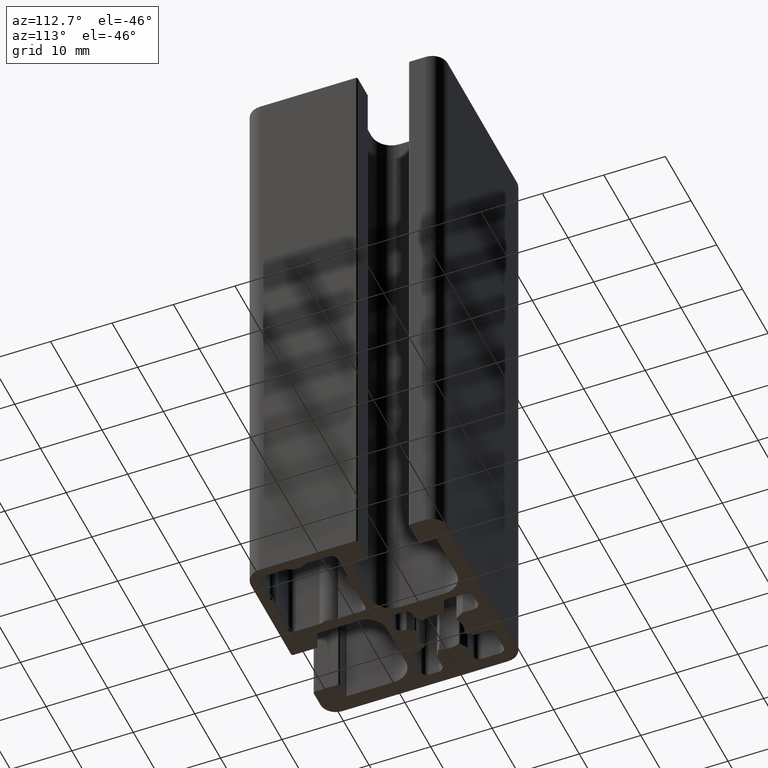
[diagram: clean part render]
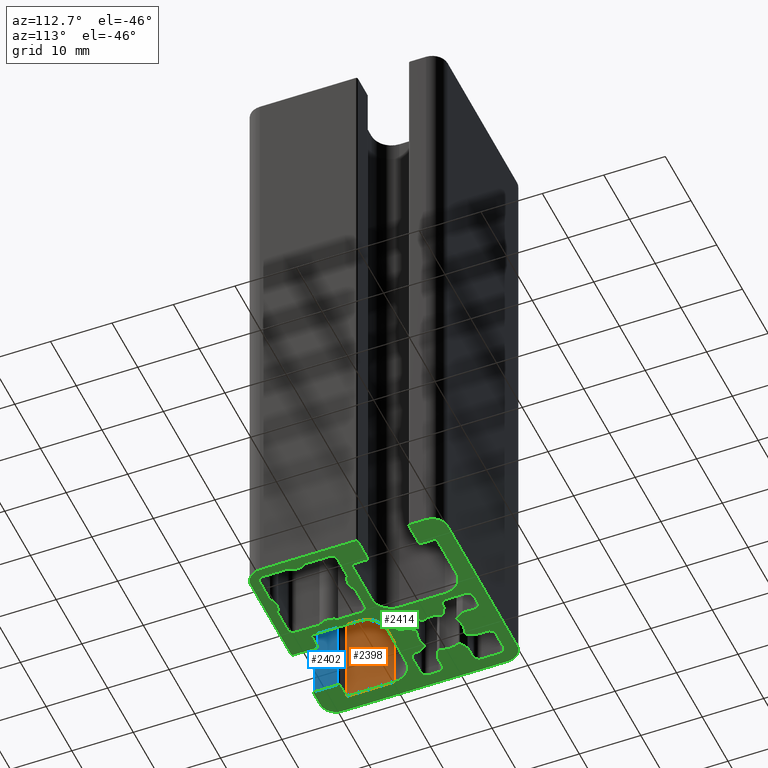
[diagram: same view with three faces highlighted in distinct colors, each labeled with its STEP entity id]
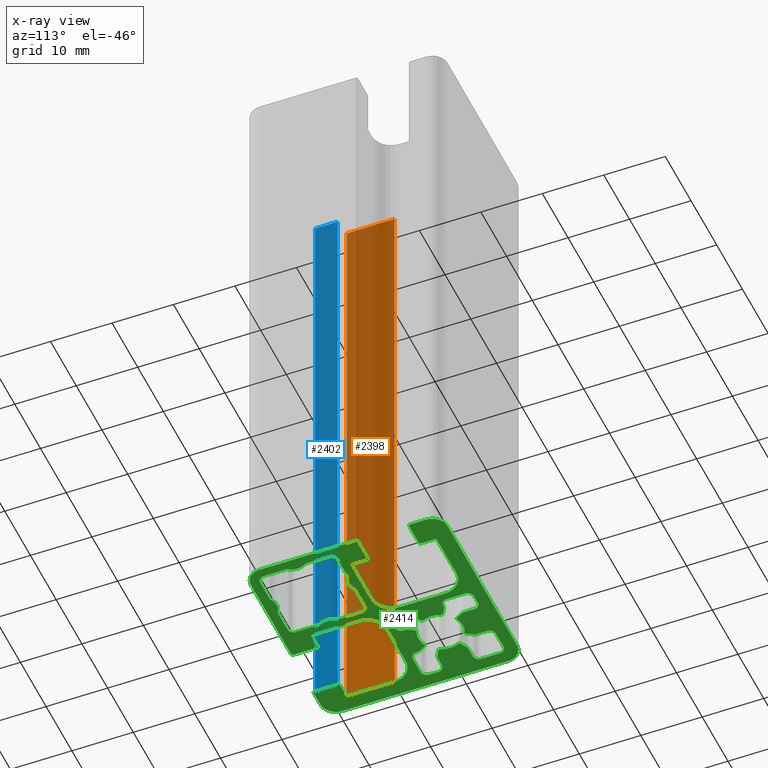
[diagram: x-ray of the same camera — body ghosted, the three highlighted faces saturated]
A machine part, auxiliary view with three faces highlighted in distinct colors.
The next image is the same camera in x-ray (body ghosted, the three faces saturated) — at least one of them is partly hidden behind the body in this view.
Their STEP definitions:

[orange] entity #2398 — the highlighted planar face has unit normal (-1, 0, 0).
#328=FACE_OUTER_BOUND('',#450,.T.);
#450=EDGE_LOOP('',(#1939,#1940,#1941,#1942));
#664=LINE('',#4055,#888);
#665=LINE('',#4059,#889);
#666=LINE('',#4061,#890);
#667=LINE('',#4062,#891);
#888=VECTOR('',#3326,100.);
#889=VECTOR('',#3331,7.79000007260086);
#890=VECTOR('',#3332,100.);
#891=VECTOR('',#3333,7.79000007260086);
#1133=VERTEX_POINT('',#4052);
#1134=VERTEX_POINT('',#4054);
#1135=VERTEX_POINT('',#4058);
#1136=VERTEX_POINT('',#4060);
#1475=EDGE_CURVE('',#1134,#1133,#664,.T.);
#1477=EDGE_CURVE('',#1135,#1133,#665,.T.);
#1478=EDGE_CURVE('',#1136,#1135,#666,.T.);
#1479=EDGE_CURVE('',#1134,#1136,#667,.T.);
#1939=ORIENTED_EDGE('',*,*,#1477,.F.);
#1940=ORIENTED_EDGE('',*,*,#1478,.F.);
#1941=ORIENTED_EDGE('',*,*,#1479,.F.);
#1942=ORIENTED_EDGE('',*,*,#1475,.T.);
#2282=PLANE('',#2646);
#2398=ADVANCED_FACE('',(#328),#2282,.F.);
#2646=AXIS2_PLACEMENT_3D('',#4057,#3329,#3330);
#3326=DIRECTION('',(0.,0.,1.));
#3329=DIRECTION('center_axis',(-1.,0.,0.));
#3330=DIRECTION('ref_axis',(0.,-1.,0.));
#3331=DIRECTION('',(0.,1.,0.));
#3332=DIRECTION('',(0.,0.,1.));
#3333=DIRECTION('',(0.,-1.,0.));
#4052=CARTESIAN_POINT('',(-6.89999393041583,-10.3999917350365,100.));
#4054=CARTESIAN_POINT('',(-6.89999393041583,-10.3999917350365,0.));
#4055=CARTESIAN_POINT('',(-6.89999393041583,-10.3999917350365,0.));
#4057=CARTESIAN_POINT('Origin',(-6.89999393041583,-10.3999917350365,0.));
#4058=CARTESIAN_POINT('',(-6.89999393041583,-18.1899918076374,100.));
#4059=CARTESIAN_POINT('',(-6.89999393041584,-8.44999586751825,100.));
#4060=CARTESIAN_POINT('',(-6.89999393041583,-18.1899918076374,0.));
#4061=CARTESIAN_POINT('',(-6.89999393041583,-18.1899918076374,0.));
#4062=CARTESIAN_POINT('',(-6.89999393041584,-8.44999586751825,0.));

[blue] entity #2402 — the highlighted planar face has unit normal (-1, 0, 0).
#332=FACE_OUTER_BOUND('',#454,.T.);
#454=EDGE_LOOP('',(#1955,#1956,#1957,#1958));
#646=LINE('',#3999,#870);
#672=LINE('',#4079,#896);
#673=LINE('',#4082,#897);
#674=LINE('',#4083,#898);
#870=VECTOR('',#3272,100.);
#896=VECTOR('',#3350,100.);
#897=VECTOR('',#3355,3.70000819236266);
#898=VECTOR('',#3356,3.70000819236266);
#1112=VERTEX_POINT('',#3993);
#1114=VERTEX_POINT('',#3997);
#1141=VERTEX_POINT('',#4076);
#1142=VERTEX_POINT('',#4078);
#1448=EDGE_CURVE('',#1114,#1112,#646,.T.);
#1487=EDGE_CURVE('',#1142,#1141,#672,.T.);
#1489=EDGE_CURVE('',#1112,#1141,#673,.T.);
#1490=EDGE_CURVE('',#1142,#1114,#674,.T.);
#1955=ORIENTED_EDGE('',*,*,#1489,.F.);
#1956=ORIENTED_EDGE('',*,*,#1448,.F.);
#1957=ORIENTED_EDGE('',*,*,#1490,.F.);
#1958=ORIENTED_EDGE('',*,*,#1487,.T.);
#2284=PLANE('',#2654);
#2402=ADVANCED_FACE('',(#332),#2284,.F.);
#2654=AXIS2_PLACEMENT_3D('',#4081,#3353,#3354);
#3272=DIRECTION('',(0.,0.,1.));
#3350=DIRECTION('',(0.,0.,1.));
#3353=DIRECTION('center_axis',(-1.,5.70113263841401E-15,0.));
#3354=DIRECTION('ref_axis',(-5.6843418860808E-15,-1.,0.));
#3355=DIRECTION('',(5.70113263841401E-15,1.,0.));
#3356=DIRECTION('',(-5.70113263841401E-15,-1.,0.));
#3993=CARTESIAN_POINT('',(-4.14999801382816,-22.2,100.));
#3997=CARTESIAN_POINT('',(-4.14999801382816,-22.2,0.));
#3999=CARTESIAN_POINT('',(-4.14999801382816,-22.2,0.));
#4076=CARTESIAN_POINT('',(-4.14999801382814,-18.4999918076374,100.));
#4078=CARTESIAN_POINT('',(-4.14999801382814,-18.4999918076374,0.));
#4079=CARTESIAN_POINT('',(-4.14999801382814,-18.4999918076374,0.));
#4081=CARTESIAN_POINT('Origin',(-4.14999801382814,-18.4999918076374,0.));
#4082=CARTESIAN_POINT('',(-4.14999801382811,-12.4999959038186,100.));
#4083=CARTESIAN_POINT('',(-4.14999801382811,-12.4999959038186,0.));

[green] entity #2414 — the highlighted planar face has unit normal (0, 0, 1).
#17=FACE_BOUND('',#469,.T.);
#18=FACE_BOUND('',#470,.T.);
#20=CIRCLE('',#2420,1.0000000165433);
#22=CIRCLE('',#2424,1.0000000165433);
#24=CIRCLE('',#2428,0.500001676334027);
#26=CIRCLE('',#2432,0.3);
#28=CIRCLE('',#2435,3.59999999999588);
#30=CIRCLE('',#2438,0.3);
#32=CIRCLE('',#2442,0.500001676334034);
#34=CIRCLE('',#2446,1.0000000165433);
#36=CIRCLE('',#2450,1.0000000165433);
#38=CIRCLE('',#2454,1.0000000165433);
#40=CIRCLE('',#2458,0.500001676334034);
#42=CIRCLE('',#2462,0.3);
#44=CIRCLE('',#2465,3.59999999999588);
#46=CIRCLE('',#2468,0.3);
#48=CIRCLE('',#2472,0.500001676334034);
#50=CIRCLE('',#2476,1.0000000165433);
#52=CIRCLE('',#2480,1.0000000165433);
#54=CIRCLE('',#2484,1.0000000165433);
#56=CIRCLE('',#2488,0.500001676334027);
#58=CIRCLE('',#2492,0.3);
#60=CIRCLE('',#2495,3.5999999999959);
#62=CIRCLE('',#2498,0.3);
#64=CIRCLE('',#2502,0.500001676334034);
#66=CIRCLE('',#2506,1.0000000165433);
#68=CIRCLE('',#2510,1.0000000165433);
#70=CIRCLE('',#2514,1.0000000165433);
#72=CIRCLE('',#2518,0.500001676334027);
#74=CIRCLE('',#2522,0.3);
#76=CIRCLE('',#2525,3.59999999999589);
#78=CIRCLE('',#2528,0.3);
#80=CIRCLE('',#2532,0.500001676334027);
#82=CIRCLE('',#2536,1.0000000165433);
#84=CIRCLE('',#2539,1.0000000165433);
#86=CIRCLE('',#2543,0.099999999999999);
#88=CIRCLE('',#2546,2.5);
#90=CIRCLE('',#2549,0.1);
#92=CIRCLE('',#2553,1.0000000165433);
#94=CIRCLE('',#2557,0.099999999999999);
#96=CIRCLE('',#2560,2.5);
#98=CIRCLE('',#2563,0.1);
#100=CIRCLE('',#2567,1.0000000165433);
#102=CIRCLE('',#2571,0.099999999999999);
#104=CIRCLE('',#2574,2.5);
#106=CIRCLE('',#2577,0.1);
#108=CIRCLE('',#2581,1.0000000165433);
#110=CIRCLE('',#2585,0.099999999999999);
#112=CIRCLE('',#2588,2.5);
#114=CIRCLE('',#2591,0.1);
#116=CIRCLE('',#2595,0.3);
#118=CIRCLE('',#2598,0.3);
#120=CIRCLE('',#2602,0.3);
#122=CIRCLE('',#2606,0.01);
#124=CIRCLE('',#2610,3.2);
#126=CIRCLE('',#2614,3.2);
#128=CIRCLE('',#2618,0.01);
#130=CIRCLE('',#2622,0.3);
#132=CIRCLE('',#2626,0.3);
#134=CIRCLE('',#2629,0.3);
#136=CIRCLE('',#2633,0.3);
#138=CIRCLE('',#2637,0.01);
#140=CIRCLE('',#2641,3.2);
#142=CIRCLE('',#2645,3.2);
#144=CIRCLE('',#2649,0.01);
#146=CIRCLE('',#2653,0.3);
#151=CIRCLE('',#2663,2.5);
#152=CIRCLE('',#2666,2.5);
#153=CIRCLE('',#2669,2.5);
#154=CIRCLE('',#2672,2.5);
#344=FACE_OUTER_BOUND('',#468,.T.);
#468=EDGE_LOOP('',(#2119,#2120,#2121,#2122,#2123,#2124,#2125,#2126,#2127,
#2128,#2129,#2130,#2131,#2132,#2133,#2134,#2135,#2136,#2137,#2138,#2139,
#2140,#2141,#2142,#2143,#2144,#2145,#2146,#2147,#2148,#2149,#2150,#2151,
#2152,#2153,#2154,#2155,#2156,#2157,#2158));
#469=EDGE_LOOP('',(#2159,#2160,#2161,#2162,#2163,#2164,#2165,#2166,#2167,
#2168,#2169,#2170,#2171,#2172,#2173,#2174,#2175,#2176,#2177,#2178,#2179,
#2180,#2181,#2182,#2183,#2184,#2185,#2186,#2187,#2188,#2189,#2190,#2191,
#2192,#2193,#2194,#2195,#2196,#2197,#2198,#2199,#2200,#2201,#2202,#2203,
#2204,#2205,#2206,#2207,#2208,#2209,#2210,#2211,#2212,#2213,#2214));
#470=EDGE_LOOP('',(#2215,#2216,#2217,#2218,#2219,#2220,#2221,#2222,#2223,
#2224,#2225,#2226,#2227,#2228,#2229,#2230,#2231,#2232,#2233,#2234,#2235,
#2236,#2237,#2238));
#473=LINE('',#3425,#697);
#477=LINE('',#3437,#701);
#481=LINE('',#3449,#705);
#485=LINE('',#3461,#709);
#491=LINE('',#3485,#715);
#495=LINE('',#3497,#719);
#499=LINE('',#3509,#723);
#503=LINE('',#3521,#727);
#507=LINE('',#3533,#731);
#511=LINE('',#3545,#735);
#517=LINE('',#3569,#741);
#521=LINE('',#3581,#745);
#525=LINE('',#3593,#749);
#529=LINE('',#3605,#753);
#533=LINE('',#3617,#757);
#537=LINE('',#3629,#761);
#543=LINE('',#3653,#767);
#547=LINE('',#3665,#771);
#551=LINE('',#3677,#775);
#555=LINE('',#3689,#779);
#559=LINE('',#3701,#783);
#563=LINE('',#3713,#787);
#569=LINE('',#3737,#793);
#573=LINE('',#3749,#797);
#579=LINE('',#3768,#803);
#585=LINE('',#3792,#809);
#589=LINE('',#3804,#813);
#595=LINE('',#3828,#819);
#599=LINE('',#3840,#823);
#605=LINE('',#3864,#829);
#609=LINE('',#3876,#833);
#614=LINE('',#3897,#838);
#620=LINE('',#3920,#844);
#624=LINE('',#3932,#848);
#628=LINE('',#3944,#852);
#632=LINE('',#3956,#856);
#636=LINE('',#3968,#860);
#640=LINE('',#3980,#864);
#644=LINE('',#3990,#868);
#651=LINE('',#4014,#875);
#655=LINE('',#4026,#879);
#659=LINE('',#4038,#883);
#663=LINE('',#4050,#887);
#667=LINE('',#4062,#891);
#671=LINE('',#4074,#895);
#674=LINE('',#4083,#898);
#675=LINE('',#4086,#899);
#678=LINE('',#4092,#902);
#688=LINE('',#4120,#912);
#691=LINE('',#4128,#915);
#693=LINE('',#4134,#917);
#694=LINE('',#4138,#918);
#697=VECTOR('',#2681,1.49997359290476);
#701=VECTOR('',#2693,3.00001937889475);
#705=VECTOR('',#2705,0.286157400015585);
#709=VECTOR('',#2717,1.20549235501416);
#715=VECTOR('',#2743,1.20550139732267);
#719=VECTOR('',#2755,0.286156572020029);
#723=VECTOR('',#2767,1.49998044408412);
#727=VECTOR('',#2779,1.49997359290475);
#731=VECTOR('',#2791,0.286160286630008);
#735=VECTOR('',#2803,1.20551149207256);
#741=VECTOR('',#2829,1.20551247579095);
#745=VECTOR('',#2841,0.286160123432451);
#749=VECTOR('',#2853,3.00003132768605);
#753=VECTOR('',#2865,1.49998044408412);
#757=VECTOR('',#2877,1.78619361797969);
#761=VECTOR('',#2889,1.20552390549743);
#767=VECTOR('',#2915,1.20550716434565);
#771=VECTOR('',#2927,1.78620176970511);
#775=VECTOR('',#2939,3.00001937889475);
#779=VECTOR('',#2951,3.00003132768605);
#783=VECTOR('',#2963,1.78619197548681);
#787=VECTOR('',#2975,1.20549956865323);
#793=VECTOR('',#3001,1.20550143487319);
#797=VECTOR('',#3013,1.78618800652766);
#803=VECTOR('',#3033,3.76702901177956);
#809=VECTOR('',#3059,3.76702554362364);
#813=VECTOR('',#3071,3.76702901178114);
#819=VECTOR('',#3097,3.76704042189502);
#823=VECTOR('',#3109,3.76703467090212);
#829=VECTOR('',#3135,3.76702335265793);
#833=VECTOR('',#3147,3.76704033931625);
#838=VECTOR('',#3172,3.76702818599233);
#844=VECTOR('',#3192,3.70000432067743);
#848=VECTOR('',#3204,2.43999591658735);
#852=VECTOR('',#3216,7.79000007259997);
#856=VECTOR('',#3228,7.40000028181478);
#860=VECTOR('',#3240,7.79000007259999);
#864=VECTOR('',#3252,2.43999591658744);
#868=VECTOR('',#3264,3.70000432067743);
#875=VECTOR('',#3285,3.70000819236266);
#879=VECTOR('',#3297,2.43999591658729);
#883=VECTOR('',#3309,7.79000007260085);
#887=VECTOR('',#3321,7.39999207868984);
#891=VECTOR('',#3333,7.79000007260086);
#895=VECTOR('',#3345,2.43999591658769);
#898=VECTOR('',#3356,3.70000819236266);
#899=VECTOR('',#3359,2.54999583839044);
#902=VECTOR('',#3364,15.5499977683133);
#912=VECTOR('',#3390,27.);
#915=VECTOR('',#3399,27.);
#917=VECTOR('',#3407,15.5499957129696);
#918=VECTOR('',#3414,2.55000198617185);
#921=VERTEX_POINT('',#3422);
#922=VERTEX_POINT('',#3424);
#924=VERTEX_POINT('',#3430);
#926=VERTEX_POINT('',#3436);
#928=VERTEX_POINT('',#3442);
#930=VERTEX_POINT('',#3448);
#932=VERTEX_POINT('',#3454);
#934=VERTEX_POINT('',#3460);
#936=VERTEX_POINT('',#3466);
#938=VERTEX_POINT('',#3472);
#940=VERTEX_POINT('',#3478);
#942=VERTEX_POINT('',#3484);
#944=VERTEX_POINT('',#3490);
#946=VERTEX_POINT('',#3496);
#948=VERTEX_POINT('',#3502);
#950=VERTEX_POINT('',#3508);
#952=VERTEX_POINT('',#3514);
#954=VERTEX_POINT('',#3520);
#956=VERTEX_POINT('',#3526);
#958=VERTEX_POINT('',#3532);
#960=VERTEX_POINT('',#3538);
#962=VERTEX_POINT('',#3544);
#964=VERTEX_POINT('',#3550);
#966=VERTEX_POINT('',#3556);
#968=VERTEX_POINT('',#3562);
#970=VERTEX_POINT('',#3568);
#972=VERTEX_POINT('',#3574);
#974=VERTEX_POINT('',#3580);
#976=VERTEX_POINT('',#3586);
#978=VERTEX_POINT('',#3592);
#980=VERTEX_POINT('',#3598);
#982=VERTEX_POINT('',#3604);
#984=VERTEX_POINT('',#3610);
#986=VERTEX_POINT('',#3616);
#988=VERTEX_POINT('',#3622);
#990=VERTEX_POINT('',#3628);
#992=VERTEX_POINT('',#3634);
#994=VERTEX_POINT('',#3640);
#996=VERTEX_POINT('',#3646);
#998=VERTEX_POINT('',#3652);
#1000=VERTEX_POINT('',#3658);
#1002=VERTEX_POINT('',#3664);
#1004=VERTEX_POINT('',#3670);
#1006=VERTEX_POINT('',#3676);
#1008=VERTEX_POINT('',#3682);
#1010=VERTEX_POINT('',#3688);
#1012=VERTEX_POINT('',#3694);
#1014=VERTEX_POINT('',#3700);
#1016=VERTEX_POINT('',#3706);
#1018=VERTEX_POINT('',#3712);
#1020=VERTEX_POINT('',#3718);
#1022=VERTEX_POINT('',#3724);
#1024=VERTEX_POINT('',#3730);
#1026=VERTEX_POINT('',#3736);
#1028=VERTEX_POINT('',#3742);
#1030=VERTEX_POINT('',#3748);
#1033=VERTEX_POINT('',#3758);
#1034=VERTEX_POINT('',#3760);
#1036=VERTEX_POINT('',#3766);
#1038=VERTEX_POINT('',#3772);
#1040=VERTEX_POINT('',#3778);
#1042=VERTEX_POINT('',#3784);
#1044=VERTEX_POINT('',#3790);
#1046=VERTEX_POINT('',#3796);
#1048=VERTEX_POINT('',#3802);
#1050=VERTEX_POINT('',#3808);
#1052=VERTEX_POINT('',#3814);
#1054=VERTEX_POINT('',#3820);
#1056=VERTEX_POINT('',#3826);
#1058=VERTEX_POINT('',#3832);
#1060=VERTEX_POINT('',#3838);
#1062=VERTEX_POINT('',#3844);
#1064=VERTEX_POINT('',#3850);
#1066=VERTEX_POINT('',#3856);
#1068=VERTEX_POINT('',#3862);
#1070=VERTEX_POINT('',#3868);
#1072=VERTEX_POINT('',#3874);
#1074=VERTEX_POINT('',#3880);
#1076=VERTEX_POINT('',#3886);
#1078=VERTEX_POINT('',#3892);
#1081=VERTEX_POINT('',#3902);
#1082=VERTEX_POINT('',#3904);
#1085=VERTEX_POINT('',#3911);
#1086=VERTEX_POINT('',#3913);
#1088=VERTEX_POINT('',#3919);
#1090=VERTEX_POINT('',#3925);
#1092=VERTEX_POINT('',#3931);
#1094=VERTEX_POINT('',#3937);
#1096=VERTEX_POINT('',#3943);
#1098=VERTEX_POINT('',#3949);
#1100=VERTEX_POINT('',#3955);
#1102=VERTEX_POINT('',#3961);
#1104=VERTEX_POINT('',#3967);
#1106=VERTEX_POINT('',#3973);
#1108=VERTEX_POINT('',#3979);
#1110=VERTEX_POINT('',#3985);
#1113=VERTEX_POINT('',#3995);
#1114=VERTEX_POINT('',#3997);
#1117=VERTEX_POINT('',#4004);
#1118=VERTEX_POINT('',#4006);
#1120=VERTEX_POINT('',#4012);
#1122=VERTEX_POINT('',#4018);
#1124=VERTEX_POINT('',#4024);
#1126=VERTEX_POINT('',#4030);
#1128=VERTEX_POINT('',#4036);
#1130=VERTEX_POINT('',#4042);
#1132=VERTEX_POINT('',#4048);
#1134=VERTEX_POINT('',#4054);
#1136=VERTEX_POINT('',#4060);
#1138=VERTEX_POINT('',#4066);
#1140=VERTEX_POINT('',#4072);
#1142=VERTEX_POINT('',#4078);
#1143=VERTEX_POINT('',#4085);
#1145=VERTEX_POINT('',#4091);
#1153=VERTEX_POINT('',#4112);
#1154=VERTEX_POINT('',#4114);
#1155=VERTEX_POINT('',#4118);
#1156=VERTEX_POINT('',#4122);
#1157=VERTEX_POINT('',#4126);
#1158=VERTEX_POINT('',#4132);
#1161=EDGE_CURVE('',#922,#921,#473,.T.);
#1164=EDGE_CURVE('',#924,#922,#20,.T.);
#1167=EDGE_CURVE('',#926,#924,#477,.T.);
#1170=EDGE_CURVE('',#928,#926,#22,.T.);
#1173=EDGE_CURVE('',#930,#928,#481,.T.);
#1176=EDGE_CURVE('',#932,#930,#24,.T.);
#1179=EDGE_CURVE('',#934,#932,#485,.T.);
#1182=EDGE_CURVE('',#936,#934,#26,.T.);
#1185=EDGE_CURVE('',#938,#936,#28,.T.);
#1188=EDGE_CURVE('',#940,#938,#30,.T.);
#1191=EDGE_CURVE('',#942,#940,#491,.T.);
#1194=EDGE_CURVE('',#944,#942,#32,.T.);
#1197=EDGE_CURVE('',#946,#944,#495,.T.);
#1200=EDGE_CURVE('',#948,#946,#34,.T.);
#1203=EDGE_CURVE('',#950,#948,#499,.T.);
#1206=EDGE_CURVE('',#952,#950,#36,.T.);
#1209=EDGE_CURVE('',#954,#952,#503,.T.);
#1212=EDGE_CURVE('',#956,#954,#38,.T.);
#1215=EDGE_CURVE('',#958,#956,#507,.T.);
#1218=EDGE_CURVE('',#960,#958,#40,.T.);
#1221=EDGE_CURVE('',#962,#960,#511,.T.);
#1224=EDGE_CURVE('',#964,#962,#42,.T.);
#1227=EDGE_CURVE('',#966,#964,#44,.T.);
#1230=EDGE_CURVE('',#968,#966,#46,.T.);
#1233=EDGE_CURVE('',#970,#968,#517,.T.);
#1236=EDGE_CURVE('',#972,#970,#48,.T.);
#1239=EDGE_CURVE('',#974,#972,#521,.T.);
#1242=EDGE_CURVE('',#976,#974,#50,.T.);
#1245=EDGE_CURVE('',#978,#976,#525,.T.);
#1248=EDGE_CURVE('',#980,#978,#52,.T.);
#1251=EDGE_CURVE('',#982,#980,#529,.T.);
#1254=EDGE_CURVE('',#984,#982,#54,.T.);
#1257=EDGE_CURVE('',#986,#984,#533,.T.);
#1260=EDGE_CURVE('',#988,#986,#56,.T.);
#1263=EDGE_CURVE('',#990,#988,#537,.T.);
#1266=EDGE_CURVE('',#992,#990,#58,.T.);
#1269=EDGE_CURVE('',#994,#992,#60,.T.);
#1272=EDGE_CURVE('',#996,#994,#62,.T.);
#1275=EDGE_CURVE('',#998,#996,#543,.T.);
#1278=EDGE_CURVE('',#1000,#998,#64,.T.);
#1281=EDGE_CURVE('',#1002,#1000,#547,.T.);
#1284=EDGE_CURVE('',#1004,#1002,#66,.T.);
#1287=EDGE_CURVE('',#1006,#1004,#551,.T.);
#1290=EDGE_CURVE('',#1008,#1006,#68,.T.);
#1293=EDGE_CURVE('',#1010,#1008,#555,.T.);
#1296=EDGE_CURVE('',#1012,#1010,#70,.T.);
#1299=EDGE_CURVE('',#1014,#1012,#559,.T.);
#1302=EDGE_CURVE('',#1016,#1014,#72,.T.);
#1305=EDGE_CURVE('',#1018,#1016,#563,.T.);
#1308=EDGE_CURVE('',#1020,#1018,#74,.T.);
#1311=EDGE_CURVE('',#1022,#1020,#76,.T.);
#1314=EDGE_CURVE('',#1024,#1022,#78,.T.);
#1317=EDGE_CURVE('',#1026,#1024,#569,.T.);
#1320=EDGE_CURVE('',#1028,#1026,#80,.T.);
#1323=EDGE_CURVE('',#1030,#1028,#573,.T.);
#1326=EDGE_CURVE('',#921,#1030,#82,.T.);
#1329=EDGE_CURVE('',#1034,#1033,#84,.T.);
#1333=EDGE_CURVE('',#1033,#1036,#579,.T.);
#1336=EDGE_CURVE('',#1036,#1038,#86,.T.);
#1339=EDGE_CURVE('',#1038,#1040,#88,.T.);
#1342=EDGE_CURVE('',#1040,#1042,#90,.T.);
#1345=EDGE_CURVE('',#1042,#1044,#585,.T.);
#1348=EDGE_CURVE('',#1044,#1046,#92,.T.);
#1351=EDGE_CURVE('',#1046,#1048,#589,.T.);
#1354=EDGE_CURVE('',#1048,#1050,#94,.T.);
#1357=EDGE_CURVE('',#1050,#1052,#96,.T.);
#1360=EDGE_CURVE('',#1052,#1054,#98,.T.);
#1363=EDGE_CURVE('',#1054,#1056,#595,.T.);
#1366=EDGE_CURVE('',#1056,#1058,#100,.T.);
#1369=EDGE_CURVE('',#1058,#1060,#599,.T.);
#1372=EDGE_CURVE('',#1060,#1062,#102,.T.);
#1375=EDGE_CURVE('',#1062,#1064,#104,.T.);
#1378=EDGE_CURVE('',#1064,#1066,#106,.T.);
#1381=EDGE_CURVE('',#1066,#1068,#605,.T.);
#1384=EDGE_CURVE('',#1068,#1070,#108,.T.);
#1387=EDGE_CURVE('',#1070,#1072,#609,.T.);
#1390=EDGE_CURVE('',#1072,#1074,#110,.T.);
#1393=EDGE_CURVE('',#1074,#1076,#112,.T.);
#1396=EDGE_CURVE('',#1076,#1078,#114,.T.);
#1398=EDGE_CURVE('',#1078,#1034,#614,.T.);
#1401=EDGE_CURVE('',#1082,#1081,#116,.T.);
#1405=EDGE_CURVE('',#1086,#1085,#118,.T.);
#1408=EDGE_CURVE('',#1088,#1086,#620,.T.);
#1411=EDGE_CURVE('',#1090,#1088,#120,.T.);
#1414=EDGE_CURVE('',#1092,#1090,#624,.T.);
#1417=EDGE_CURVE('',#1094,#1092,#122,.T.);
#1420=EDGE_CURVE('',#1096,#1094,#628,.T.);
#1423=EDGE_CURVE('',#1098,#1096,#124,.T.);
#1426=EDGE_CURVE('',#1100,#1098,#632,.T.);
#1429=EDGE_CURVE('',#1102,#1100,#126,.T.);
#1432=EDGE_CURVE('',#1104,#1102,#636,.T.);
#1435=EDGE_CURVE('',#1106,#1104,#128,.T.);
#1438=EDGE_CURVE('',#1108,#1106,#640,.T.);
#1441=EDGE_CURVE('',#1110,#1108,#130,.T.);
#1444=EDGE_CURVE('',#1081,#1110,#644,.T.);
#1447=EDGE_CURVE('',#1114,#1113,#132,.T.);
#1451=EDGE_CURVE('',#1118,#1117,#134,.T.);
#1455=EDGE_CURVE('',#1117,#1120,#651,.T.);
#1458=EDGE_CURVE('',#1120,#1122,#136,.T.);
#1461=EDGE_CURVE('',#1122,#1124,#655,.T.);
#1464=EDGE_CURVE('',#1124,#1126,#138,.T.);
#1467=EDGE_CURVE('',#1126,#1128,#659,.T.);
#1470=EDGE_CURVE('',#1128,#1130,#140,.T.);
#1473=EDGE_CURVE('',#1130,#1132,#663,.T.);
#1476=EDGE_CURVE('',#1132,#1134,#142,.T.);
#1479=EDGE_CURVE('',#1134,#1136,#667,.T.);
#1482=EDGE_CURVE('',#1136,#1138,#144,.T.);
#1485=EDGE_CURVE('',#1138,#1140,#671,.T.);
#1488=EDGE_CURVE('',#1140,#1142,#146,.T.);
#1490=EDGE_CURVE('',#1142,#1114,#674,.T.);
#1491=EDGE_CURVE('',#1143,#1082,#675,.T.);
#1494=EDGE_CURVE('',#1145,#1118,#678,.T.);
#1506=EDGE_CURVE('',#1154,#1153,#151,.T.);
#1509=EDGE_CURVE('',#1153,#1155,#688,.T.);
#1511=EDGE_CURVE('',#1155,#1156,#152,.T.);
#1513=EDGE_CURVE('',#1156,#1157,#691,.T.);
#1514=EDGE_CURVE('',#1157,#1143,#153,.T.);
#1516=EDGE_CURVE('',#1085,#1158,#693,.T.);
#1517=EDGE_CURVE('',#1158,#1145,#154,.T.);
#1518=EDGE_CURVE('',#1113,#1154,#694,.T.);
#2119=ORIENTED_EDGE('',*,*,#1405,.T.);
#2120=ORIENTED_EDGE('',*,*,#1516,.T.);
#2121=ORIENTED_EDGE('',*,*,#1517,.T.);
#2122=ORIENTED_EDGE('',*,*,#1494,.T.);
#2123=ORIENTED_EDGE('',*,*,#1451,.T.);
#2124=ORIENTED_EDGE('',*,*,#1455,.T.);
#2125=ORIENTED_EDGE('',*,*,#1458,.T.);
#2126=ORIENTED_EDGE('',*,*,#1461,.T.);
#2127=ORIENTED_EDGE('',*,*,#1464,.T.);
#2128=ORIENTED_EDGE('',*,*,#1467,.T.);
#2129=ORIENTED_EDGE('',*,*,#1470,.T.);
#2130=ORIENTED_EDGE('',*,*,#1473,.T.);
#2131=ORIENTED_EDGE('',*,*,#1476,.T.);
#2132=ORIENTED_EDGE('',*,*,#1479,.T.);
#2133=ORIENTED_EDGE('',*,*,#1482,.T.);
#2134=ORIENTED_EDGE('',*,*,#1485,.T.);
#2135=ORIENTED_EDGE('',*,*,#1488,.T.);
#2136=ORIENTED_EDGE('',*,*,#1490,.T.);
#2137=ORIENTED_EDGE('',*,*,#1447,.T.);
#2138=ORIENTED_EDGE('',*,*,#1518,.T.);
#2139=ORIENTED_EDGE('',*,*,#1506,.T.);
#2140=ORIENTED_EDGE('',*,*,#1509,.T.);
#2141=ORIENTED_EDGE('',*,*,#1511,.T.);
#2142=ORIENTED_EDGE('',*,*,#1513,.T.);
#2143=ORIENTED_EDGE('',*,*,#1514,.T.);
#2144=ORIENTED_EDGE('',*,*,#1491,.T.);
#2145=ORIENTED_EDGE('',*,*,#1401,.T.);
#2146=ORIENTED_EDGE('',*,*,#1444,.T.);
#2147=ORIENTED_EDGE('',*,*,#1441,.T.);
#2148=ORIENTED_EDGE('',*,*,#1438,.T.);
#2149=ORIENTED_EDGE('',*,*,#1435,.T.);
#2150=ORIENTED_EDGE('',*,*,#1432,.T.);
#2151=ORIENTED_EDGE('',*,*,#1429,.T.);
#2152=ORIENTED_EDGE('',*,*,#1426,.T.);
#2153=ORIENTED_EDGE('',*,*,#1423,.T.);
#2154=ORIENTED_EDGE('',*,*,#1420,.T.);
#2155=ORIENTED_EDGE('',*,*,#1417,.T.);
#2156=ORIENTED_EDGE('',*,*,#1414,.T.);
#2157=ORIENTED_EDGE('',*,*,#1411,.T.);
#2158=ORIENTED_EDGE('',*,*,#1408,.T.);
#2159=ORIENTED_EDGE('',*,*,#1161,.T.);
#2160=ORIENTED_EDGE('',*,*,#1326,.T.);
#2161=ORIENTED_EDGE('',*,*,#1323,.T.);
#2162=ORIENTED_EDGE('',*,*,#1320,.T.);
#2163=ORIENTED_EDGE('',*,*,#1317,.T.);
#2164=ORIENTED_EDGE('',*,*,#1314,.T.);
#2165=ORIENTED_EDGE('',*,*,#1311,.T.);
#2166=ORIENTED_EDGE('',*,*,#1308,.T.);
#2167=ORIENTED_EDGE('',*,*,#1305,.T.);
#2168=ORIENTED_EDGE('',*,*,#1302,.T.);
#2169=ORIENTED_EDGE('',*,*,#1299,.T.);
#2170=ORIENTED_EDGE('',*,*,#1296,.T.);
#2171=ORIENTED_EDGE('',*,*,#1293,.T.);
#2172=ORIENTED_EDGE('',*,*,#1290,.T.);
#2173=ORIENTED_EDGE('',*,*,#1287,.T.);
#2174=ORIENTED_EDGE('',*,*,#1284,.T.);
#2175=ORIENTED_EDGE('',*,*,#1281,.T.);
#2176=ORIENTED_EDGE('',*,*,#1278,.T.);
#2177=ORIENTED_EDGE('',*,*,#1275,.T.);
#2178=ORIENTED_EDGE('',*,*,#1272,.T.);
#2179=ORIENTED_EDGE('',*,*,#1269,.T.);
#2180=ORIENTED_EDGE('',*,*,#1266,.T.);
#2181=ORIENTED_EDGE('',*,*,#1263,.T.);
#2182=ORIENTED_EDGE('',*,*,#1260,.T.);
#2183=ORIENTED_EDGE('',*,*,#1257,.T.);
#2184=ORIENTED_EDGE('',*,*,#1254,.T.);
#2185=ORIENTED_EDGE('',*,*,#1251,.T.);
#2186=ORIENTED_EDGE('',*,*,#1248,.T.);
#2187=ORIENTED_EDGE('',*,*,#1245,.T.);
#2188=ORIENTED_EDGE('',*,*,#1242,.T.);
#2189=ORIENTED_EDGE('',*,*,#1239,.T.);
#2190=ORIENTED_EDGE('',*,*,#1236,.T.);
#2191=ORIENTED_EDGE('',*,*,#1233,.T.);
#2192=ORIENTED_EDGE('',*,*,#1230,.T.);
#2193=ORIENTED_EDGE('',*,*,#1227,.T.);
#2194=ORIENTED_EDGE('',*,*,#1224,.T.);
#2195=ORIENTED_EDGE('',*,*,#1221,.T.);
#2196=ORIENTED_EDGE('',*,*,#1218,.T.);
#2197=ORIENTED_EDGE('',*,*,#1215,.T.);
#2198=ORIENTED_EDGE('',*,*,#1212,.T.);
#2199=ORIENTED_EDGE('',*,*,#1209,.T.);
#2200=ORIENTED_EDGE('',*,*,#1206,.T.);
#2201=ORIENTED_EDGE('',*,*,#1203,.T.);
#2202=ORIENTED_EDGE('',*,*,#1200,.T.);
#2203=ORIENTED_EDGE('',*,*,#1197,.T.);
#2204=ORIENTED_EDGE('',*,*,#1194,.T.);
#2205=ORIENTED_EDGE('',*,*,#1191,.T.);
#2206=ORIENTED_EDGE('',*,*,#1188,.T.);
#2207=ORIENTED_EDGE('',*,*,#1185,.T.);
#2208=ORIENTED_EDGE('',*,*,#1182,.T.);
#2209=ORIENTED_EDGE('',*,*,#1179,.T.);
#2210=ORIENTED_EDGE('',*,*,#1176,.T.);
#2211=ORIENTED_EDGE('',*,*,#1173,.T.);
#2212=ORIENTED_EDGE('',*,*,#1170,.T.);
#2213=ORIENTED_EDGE('',*,*,#1167,.T.);
#2214=ORIENTED_EDGE('',*,*,#1164,.T.);
#2215=ORIENTED_EDGE('',*,*,#1329,.T.);
#2216=ORIENTED_EDGE('',*,*,#1333,.T.);
#2217=ORIENTED_EDGE('',*,*,#1336,.T.);
#2218=ORIENTED_EDGE('',*,*,#1339,.T.);
#2219=ORIENTED_EDGE('',*,*,#1342,.T.);
#2220=ORIENTED_EDGE('',*,*,#1345,.T.);
#2221=ORIENTED_EDGE('',*,*,#1348,.T.);
#2222=ORIENTED_EDGE('',*,*,#1351,.T.);
#2223=ORIENTED_EDGE('',*,*,#1354,.T.);
#2224=ORIENTED_EDGE('',*,*,#1357,.T.);
#2225=ORIENTED_EDGE('',*,*,#1360,.T.);
#2226=ORIENTED_EDGE('',*,*,#1363,.T.);
#2227=ORIENTED_EDGE('',*,*,#1366,.T.);
#2228=ORIENTED_EDGE('',*,*,#1369,.T.);
#2229=ORIENTED_EDGE('',*,*,#1372,.T.);
#2230=ORIENTED_EDGE('',*,*,#1375,.T.);
#2231=ORIENTED_EDGE('',*,*,#1378,.T.);
#2232=ORIENTED_EDGE('',*,*,#1381,.T.);
#2233=ORIENTED_EDGE('',*,*,#1384,.T.);
#2234=ORIENTED_EDGE('',*,*,#1387,.T.);
#2235=ORIENTED_EDGE('',*,*,#1390,.T.);
#2236=ORIENTED_EDGE('',*,*,#1393,.T.);
#2237=ORIENTED_EDGE('',*,*,#1396,.T.);
#2238=ORIENTED_EDGE('',*,*,#1398,.T.);
#2292=PLANE('',#2674);
#2414=ADVANCED_FACE('',(#344,#17,#18),#2292,.F.);
#2420=AXIS2_PLACEMENT_3D('',#3431,#2687,#2688);
#2424=AXIS2_PLACEMENT_3D('',#3443,#2699,#2700);
#2428=AXIS2_PLACEMENT_3D('',#3455,#2711,#2712);
#2432=AXIS2_PLACEMENT_3D('',#3467,#2723,#2724);
#2435=AXIS2_PLACEMENT_3D('',#3473,#2730,#2731);
#2438=AXIS2_PLACEMENT_3D('',#3479,#2737,#2738);
#2442=AXIS2_PLACEMENT_3D('',#3491,#2749,#2750);
#2446=AXIS2_PLACEMENT_3D('',#3503,#2761,#2762);
#2450=AXIS2_PLACEMENT_3D('',#3515,#2773,#2774);
#2454=AXIS2_PLACEMENT_3D('',#3527,#2785,#2786);
#2458=AXIS2_PLACEMENT_3D('',#3539,#2797,#2798);
#2462=AXIS2_PLACEMENT_3D('',#3551,#2809,#2810);
#2465=AXIS2_PLACEMENT_3D('',#3557,#2816,#2817);
#2468=AXIS2_PLACEMENT_3D('',#3563,#2823,#2824);
#2472=AXIS2_PLACEMENT_3D('',#3575,#2835,#2836);
#2476=AXIS2_PLACEMENT_3D('',#3587,#2847,#2848);
#2480=AXIS2_PLACEMENT_3D('',#3599,#2859,#2860);
#2484=AXIS2_PLACEMENT_3D('',#3611,#2871,#2872);
#2488=AXIS2_PLACEMENT_3D('',#3623,#2883,#2884);
#2492=AXIS2_PLACEMENT_3D('',#3635,#2895,#2896);
#2495=AXIS2_PLACEMENT_3D('',#3641,#2902,#2903);
#2498=AXIS2_PLACEMENT_3D('',#3647,#2909,#2910);
#2502=AXIS2_PLACEMENT_3D('',#3659,#2921,#2922);
#2506=AXIS2_PLACEMENT_3D('',#3671,#2933,#2934);
#2510=AXIS2_PLACEMENT_3D('',#3683,#2945,#2946);
#2514=AXIS2_PLACEMENT_3D('',#3695,#2957,#2958);
#2518=AXIS2_PLACEMENT_3D('',#3707,#2969,#2970);
#2522=AXIS2_PLACEMENT_3D('',#3719,#2981,#2982);
#2525=AXIS2_PLACEMENT_3D('',#3725,#2988,#2989);
#2528=AXIS2_PLACEMENT_3D('',#3731,#2995,#2996);
#2532=AXIS2_PLACEMENT_3D('',#3743,#3007,#3008);
#2536=AXIS2_PLACEMENT_3D('',#3753,#3019,#3020);
#2539=AXIS2_PLACEMENT_3D('',#3761,#3026,#3027);
#2543=AXIS2_PLACEMENT_3D('',#3774,#3039,#3040);
#2546=AXIS2_PLACEMENT_3D('',#3780,#3046,#3047);
#2549=AXIS2_PLACEMENT_3D('',#3786,#3053,#3054);
#2553=AXIS2_PLACEMENT_3D('',#3798,#3065,#3066);
#2557=AXIS2_PLACEMENT_3D('',#3810,#3077,#3078);
#2560=AXIS2_PLACEMENT_3D('',#3816,#3084,#3085);
#2563=AXIS2_PLACEMENT_3D('',#3822,#3091,#3092);
#2567=AXIS2_PLACEMENT_3D('',#3834,#3103,#3104);
#2571=AXIS2_PLACEMENT_3D('',#3846,#3115,#3116);
#2574=AXIS2_PLACEMENT_3D('',#3852,#3122,#3123);
#2577=AXIS2_PLACEMENT_3D('',#3858,#3129,#3130);
#2581=AXIS2_PLACEMENT_3D('',#3870,#3141,#3142);
#2585=AXIS2_PLACEMENT_3D('',#3882,#3153,#3154);
#2588=AXIS2_PLACEMENT_3D('',#3888,#3160,#3161);
#2591=AXIS2_PLACEMENT_3D('',#3894,#3167,#3168);
#2595=AXIS2_PLACEMENT_3D('',#3905,#3178,#3179);
#2598=AXIS2_PLACEMENT_3D('',#3914,#3186,#3187);
#2602=AXIS2_PLACEMENT_3D('',#3926,#3198,#3199);
#2606=AXIS2_PLACEMENT_3D('',#3938,#3210,#3211);
#2610=AXIS2_PLACEMENT_3D('',#3950,#3222,#3223);
#2614=AXIS2_PLACEMENT_3D('',#3962,#3234,#3235);
#2618=AXIS2_PLACEMENT_3D('',#3974,#3246,#3247);
#2622=AXIS2_PLACEMENT_3D('',#3986,#3258,#3259);
#2626=AXIS2_PLACEMENT_3D('',#3998,#3270,#3271);
#2629=AXIS2_PLACEMENT_3D('',#4007,#3278,#3279);
#2633=AXIS2_PLACEMENT_3D('',#4020,#3291,#3292);
#2637=AXIS2_PLACEMENT_3D('',#4032,#3303,#3304);
#2641=AXIS2_PLACEMENT_3D('',#4044,#3315,#3316);
#2645=AXIS2_PLACEMENT_3D('',#4056,#3327,#3328);
#2649=AXIS2_PLACEMENT_3D('',#4068,#3339,#3340);
#2653=AXIS2_PLACEMENT_3D('',#4080,#3351,#3352);
#2663=AXIS2_PLACEMENT_3D('',#4115,#3384,#3385);
#2666=AXIS2_PLACEMENT_3D('',#4124,#3394,#3395);
#2669=AXIS2_PLACEMENT_3D('',#4130,#3402,#3403);
#2672=AXIS2_PLACEMENT_3D('',#4136,#3410,#3411);
#2674=AXIS2_PLACEMENT_3D('',#4139,#3415,#3416);
#2681=DIRECTION('',(-1.,5.92129370744543E-15,0.));
#2687=DIRECTION('center_axis',(0.,0.,1.));
#2688=DIRECTION('ref_axis',(1.,4.44089202503363E-15,0.));
#2693=DIRECTION('',(-1.48028780405302E-15,1.,0.));
#2699=DIRECTION('center_axis',(0.,0.,1.));
#2700=DIRECTION('ref_axis',(0.,-1.,0.));
#2705=DIRECTION('',(1.,-1.55190538433001E-14,0.));
#2711=DIRECTION('center_axis',(0.,0.,-1.));
#2712=DIRECTION('ref_axis',(-8.88175441942698E-15,-1.,0.));
#2717=DIRECTION('',(0.866025509586623,0.499999816745197,0.));
#2723=DIRECTION('center_axis',(0.,0.,-1.));
#2724=DIRECTION('ref_axis',(0.499999816745203,-0.866025509586619,0.));
#2730=DIRECTION('center_axis',(0.,0.,1.));
#2731=DIRECTION('ref_axis',(0.915339856575037,-0.40268219102065,0.));
#2737=DIRECTION('center_axis',(0.,0.,-1.));
#2738=DIRECTION('ref_axis',(0.915339856575036,-0.402682191020651,0.));
#2743=DIRECTION('',(-0.866021992403805,0.500005908638032,0.));
#2749=DIRECTION('center_axis',(0.,0.,-1.));
#2750=DIRECTION('ref_axis',(0.500005908638014,0.866021992403815,0.));
#2755=DIRECTION('',(-1.,0.,0.));
#2761=DIRECTION('center_axis',(0.,0.,1.));
#2762=DIRECTION('ref_axis',(1.,-4.44089202503363E-15,0.));
#2767=DIRECTION('',(0.,1.,0.));
#2773=DIRECTION('center_axis',(0.,0.,1.));
#2774=DIRECTION('ref_axis',(0.,-1.,0.));
#2779=DIRECTION('',(1.,-2.96064685372273E-15,0.));
#2785=DIRECTION('center_axis',(0.,0.,1.));
#2786=DIRECTION('ref_axis',(-1.,0.,0.));
#2791=DIRECTION('',(-5.81958648612529E-15,-1.,0.));
#2797=DIRECTION('center_axis',(0.,0.,-1.));
#2798=DIRECTION('ref_axis',(-1.,-8.88175441942683E-15,0.));
#2803=DIRECTION('',(0.49999981674519,-0.866025509586627,0.));
#2809=DIRECTION('center_axis',(0.,0.,-1.));
#2810=DIRECTION('ref_axis',(-0.866025509586622,-0.499999816745199,0.));
#2816=DIRECTION('center_axis',(0.,0.,1.));
#2817=DIRECTION('ref_axis',(-0.40267825495363,-0.91534158814483,0.));
#2823=DIRECTION('center_axis',(0.,0.,-1.));
#2824=DIRECTION('ref_axis',(-0.402678254953657,-0.915341588144818,0.));
#2829=DIRECTION('',(0.500005908638026,0.866021992403808,0.));
#2835=DIRECTION('center_axis',(0.,0.,-1.));
#2836=DIRECTION('ref_axis',(0.866021992403805,-0.500005908638033,0.));
#2841=DIRECTION('',(0.,1.,0.));
#2847=DIRECTION('center_axis',(0.,0.,1.));
#2848=DIRECTION('ref_axis',(1.11022300625841E-15,-1.,0.));
#2853=DIRECTION('',(1.,1.48028190823125E-15,0.));
#2859=DIRECTION('center_axis',(0.,0.,1.));
#2860=DIRECTION('ref_axis',(-1.,4.44089202503363E-15,0.));
#2865=DIRECTION('',(-1.48031666546567E-15,-1.,0.));
#2871=DIRECTION('center_axis',(0.,0.,1.));
#2872=DIRECTION('ref_axis',(1.11022300625841E-15,1.,0.));
#2877=DIRECTION('',(-1.,7.45869661687112E-15,0.));
#2883=DIRECTION('center_axis',(0.,0.,-1.));
#2884=DIRECTION('ref_axis',(-2.22043860485672E-15,1.,0.));
#2889=DIRECTION('',(-0.866025509586624,-0.499999816745194,0.));
#2895=DIRECTION('center_axis',(0.,0.,-1.));
#2896=DIRECTION('ref_axis',(-0.4999998167452,0.866025509586621,0.));
#2902=DIRECTION('center_axis',(0.,0.,1.));
#2903=DIRECTION('ref_axis',(-0.9153426204002,0.402675908490805,0.));
#2909=DIRECTION('center_axis',(0.,0.,-1.));
#2910=DIRECTION('ref_axis',(-0.915342620400191,0.402675908490826,0.));
#2915=DIRECTION('',(0.866021992403808,-0.500005908638027,0.));
#2921=DIRECTION('center_axis',(0.,0.,-1.));
#2922=DIRECTION('ref_axis',(-0.500005908638032,-0.866021992403805,0.));
#2927=DIRECTION('',(1.,2.48622085915512E-15,0.));
#2933=DIRECTION('center_axis',(0.,0.,1.));
#2934=DIRECTION('ref_axis',(-1.,4.44089202503363E-15,0.));
#2939=DIRECTION('',(-7.40143902026511E-16,-1.,0.));
#2945=DIRECTION('center_axis',(0.,0.,1.));
#2946=DIRECTION('ref_axis',(1.1102230062584E-15,1.,0.));
#2951=DIRECTION('',(-1.,0.,0.));
#2957=DIRECTION('center_axis',(0.,0.,1.));
#2958=DIRECTION('ref_axis',(1.,0.,0.));
#2963=DIRECTION('',(2.79701380331842E-15,1.,0.));
#2969=DIRECTION('center_axis',(0.,0.,-1.));
#2970=DIRECTION('ref_axis',(1.,0.,0.));
#2975=DIRECTION('',(-0.499999816745193,0.866025509586625,0.));
#2981=DIRECTION('center_axis',(0.,0.,-1.));
#2982=DIRECTION('ref_axis',(0.866025509586622,0.499999816745199,0.));
#2988=DIRECTION('center_axis',(0.,0.,1.));
#2989=DIRECTION('ref_axis',(0.402678840680164,0.915341330471032,0.));
#2995=DIRECTION('center_axis',(0.,0.,-1.));
#2996=DIRECTION('ref_axis',(0.402678840680156,0.915341330471036,0.));
#3001=DIRECTION('',(-0.500005908638027,-0.866021992403808,0.));
#3007=DIRECTION('center_axis',(0.,0.,-1.));
#3008=DIRECTION('ref_axis',(-0.866021992403815,0.500005908638014,0.));
#3013=DIRECTION('',(5.90482003876096E-15,-1.,0.));
#3019=DIRECTION('center_axis',(0.,0.,1.));
#3020=DIRECTION('ref_axis',(1.44328990813593E-14,1.,0.));
#3026=DIRECTION('center_axis',(0.,0.,1.));
#3027=DIRECTION('ref_axis',(0.,1.,0.));
#3033=DIRECTION('',(2.35776899228219E-15,-1.,0.));
#3039=DIRECTION('center_axis',(0.,0.,1.));
#3040=DIRECTION('ref_axis',(-1.,-8.88178419700134E-14,0.));
#3046=DIRECTION('center_axis',(0.,0.,-1.));
#3047=DIRECTION('ref_axis',(-0.807691820825252,0.58960488682845,0.));
#3053=DIRECTION('center_axis',(0.,0.,1.));
#3054=DIRECTION('ref_axis',(-0.80769182082527,0.589604886828424,0.));
#3059=DIRECTION('',(-2.94721395373707E-16,-1.,0.));
#3065=DIRECTION('center_axis',(0.,0.,1.));
#3066=DIRECTION('ref_axis',(-1.,0.,0.));
#3071=DIRECTION('',(1.,2.3577689922812E-15,0.));
#3077=DIRECTION('center_axis',(0.,0.,1.));
#3078=DIRECTION('ref_axis',(0.,-1.,0.));
#3084=DIRECTION('center_axis',(0.,0.,-1.));
#3085=DIRECTION('ref_axis',(-0.589604061069474,-0.807692423618288,0.));
#3091=DIRECTION('center_axis',(0.,0.,1.));
#3092=DIRECTION('ref_axis',(-0.589604061069525,-0.80769242361825,0.));
#3097=DIRECTION('',(1.,0.,0.));
#3103=DIRECTION('center_axis',(0.,0.,1.));
#3104=DIRECTION('ref_axis',(0.,-1.,0.));
#3109=DIRECTION('',(0.,1.,0.));
#3115=DIRECTION('center_axis',(0.,0.,1.));
#3116=DIRECTION('ref_axis',(1.,-2.22044604925036E-14,0.));
#3122=DIRECTION('center_axis',(0.,0.,-1.));
#3123=DIRECTION('ref_axis',(0.807692307692327,-0.5896042198752,0.));
#3129=DIRECTION('center_axis',(0.,0.,1.));
#3130=DIRECTION('ref_axis',(0.80769230769229,-0.58960421987525,0.));
#3135=DIRECTION('',(3.53665880146501E-15,1.,0.));
#3141=DIRECTION('center_axis',(0.,0.,1.));
#3142=DIRECTION('ref_axis',(1.,0.,0.));
#3147=DIRECTION('',(-1.,-1.17888095122089E-15,0.));
#3153=DIRECTION('center_axis',(0.,0.,1.));
#3154=DIRECTION('ref_axis',(-2.22044604925036E-14,1.,0.));
#3160=DIRECTION('center_axis',(0.,0.,-1.));
#3161=DIRECTION('ref_axis',(0.589604235755548,0.807692296099892,0.));
#3167=DIRECTION('center_axis',(0.,0.,1.));
#3168=DIRECTION('ref_axis',(0.589604235755594,0.807692296099859,0.));
#3172=DIRECTION('',(-1.,0.,0.));
#3178=DIRECTION('center_axis',(0.,0.,-1.));
#3179=DIRECTION('ref_axis',(0.,1.,0.));
#3186=DIRECTION('center_axis',(0.,0.,-1.));
#3187=DIRECTION('ref_axis',(-1.,0.,0.));
#3192=DIRECTION('',(1.,-3.60071911836651E-15,0.));
#3198=DIRECTION('center_axis',(0.,0.,-1.));
#3199=DIRECTION('ref_axis',(-3.70074341541716E-14,-1.,0.));
#3204=DIRECTION('',(1.82004079117959E-15,1.,0.));
#3210=DIRECTION('center_axis',(0.,0.,1.));
#3211=DIRECTION('ref_axis',(8.88178419700223E-13,-1.,0.));
#3216=DIRECTION('',(1.,5.70076002196807E-16,0.));
#3222=DIRECTION('center_axis',(0.,0.,1.));
#3223=DIRECTION('ref_axis',(-1.,0.,0.));
#3228=DIRECTION('',(1.800361592991E-15,-1.,0.));
#3234=DIRECTION('center_axis',(0.,0.,1.));
#3235=DIRECTION('ref_axis',(-1.38777878078144E-15,1.,0.));
#3240=DIRECTION('',(-1.,-1.71022800659042E-15,0.));
#3246=DIRECTION('center_axis',(0.,0.,1.));
#3247=DIRECTION('ref_axis',(1.,0.,0.));
#3252=DIRECTION('',(3.64008158235906E-15,1.,0.));
#3258=DIRECTION('center_axis',(0.,0.,-1.));
#3259=DIRECTION('ref_axis',(1.,0.,0.));
#3264=DIRECTION('',(-1.,2.40047941224433E-15,0.));
#3270=DIRECTION('center_axis',(0.,0.,-1.));
#3271=DIRECTION('ref_axis',(0.,1.,0.));
#3278=DIRECTION('center_axis',(0.,0.,-1.));
#3279=DIRECTION('ref_axis',(1.,-1.48029736616689E-14,0.));
#3285=DIRECTION('',(-9.00178837644318E-16,1.,0.));
#3291=DIRECTION('center_axis',(0.,0.,-1.));
#3292=DIRECTION('ref_axis',(-3.70074341541719E-15,-1.,0.));
#3297=DIRECTION('',(1.,-4.5501019779491E-15,0.));
#3303=DIRECTION('center_axis',(0.,0.,1.));
#3304=DIRECTION('ref_axis',(-1.11022302462503E-13,-1.,0.));
#3309=DIRECTION('',(1.42519000549186E-16,1.,0.));
#3315=DIRECTION('center_axis',(0.,0.,1.));
#3316=DIRECTION('ref_axis',(1.,-1.38777878078144E-15,0.));
#3321=DIRECTION('',(-1.,6.00121196249562E-16,0.));
#3327=DIRECTION('center_axis',(0.,0.,1.));
#3328=DIRECTION('ref_axis',(0.,1.,0.));
#3333=DIRECTION('',(0.,-1.,0.));
#3339=DIRECTION('center_axis',(0.,0.,1.));
#3340=DIRECTION('ref_axis',(-1.,-6.66133814775167E-13,0.));
#3345=DIRECTION('',(1.,-1.82004079117934E-15,0.));
#3351=DIRECTION('center_axis',(0.,0.,-1.));
#3352=DIRECTION('ref_axis',(-1.,7.40148683083438E-15,0.));
#3356=DIRECTION('',(-5.70113263841401E-15,-1.,0.));
#3359=DIRECTION('',(1.64477485129653E-16,-1.,0.));
#3364=DIRECTION('',(-1.,1.64477485129653E-16,0.));
#3384=DIRECTION('center_axis',(0.,0.,-1.));
#3385=DIRECTION('ref_axis',(1.,0.,0.));
#3390=DIRECTION('',(0.,1.,0.));
#3394=DIRECTION('center_axis',(0.,0.,-1.));
#3395=DIRECTION('ref_axis',(4.44089209850062E-16,-1.,0.));
#3399=DIRECTION('',(1.,-8.22387425648264E-17,0.));
#3402=DIRECTION('center_axis',(0.,0.,-1.));
#3403=DIRECTION('ref_axis',(-1.,-1.33226762955019E-15,0.));
#3407=DIRECTION('',(1.64477485129653E-16,-1.,0.));
#3410=DIRECTION('center_axis',(0.,0.,-1.));
#3411=DIRECTION('ref_axis',(1.77635683940025E-15,1.,0.));
#3414=DIRECTION('',(-1.,1.64477485129653E-16,0.));
#3415=DIRECTION('center_axis',(0.,0.,1.));
#3416=DIRECTION('ref_axis',(1.,0.,0.));
#3422=CARTESIAN_POINT('',(3.50000116161362,7.50001198628327,0.));
#3424=CARTESIAN_POINT('',(4.99997475451838,7.50001198628326,0.));
#3425=CARTESIAN_POINT('',(5.74998737725923,7.50001198628325,0.));
#3430=CARTESIAN_POINT('',(5.99997477106167,6.50001196973997,0.));
#3431=CARTESIAN_POINT('Origin',(4.99997475451837,6.50001196973996,0.));
#3436=CARTESIAN_POINT('',(5.99997477106167,3.49999259084522,0.));
#3437=CARTESIAN_POINT('',(5.99997477106168,-1.50000370457739,0.));
#3442=CARTESIAN_POINT('',(4.99997475451837,2.49999257430192,0.));
#3443=CARTESIAN_POINT('Origin',(4.99997475451837,3.49999259084521,0.));
#3448=CARTESIAN_POINT('',(4.71381735450279,2.49999257430192,0.));
#3449=CARTESIAN_POINT('',(5.60690867725146,2.49999257430191,0.));
#3454=CARTESIAN_POINT('',(4.46381660796348,2.43300510450924,0.));
#3455=CARTESIAN_POINT('Origin',(4.71381735450279,1.9999908979679,0.));
#3460=CARTESIAN_POINT('',(3.41982947690957,1.83025914791442,0.));
#3461=CARTESIAN_POINT('',(2.7713401354261,1.45585383500659,0.));
#3466=CARTESIAN_POINT('',(3.29522715870722,1.44964753388152,0.));
#3467=CARTESIAN_POINT('Origin',(3.56982942193313,1.57045149503845,0.));
#3472=CARTESIAN_POINT('',(3.29522348366637,-1.44965588767269,0.));
#3473=CARTESIAN_POINT('Origin',(-8.40104747141352E-16,-4.44089209850063E-15,
0.));
#3478=CARTESIAN_POINT('',(3.41982366804746,-1.83026714270003,0.));
#3479=CARTESIAN_POINT('Origin',(3.56982544063888,-1.57046054497889,0.));
#3484=CARTESIAN_POINT('',(4.46381439000242,-2.43302496423277,0.));
#3485=CARTESIAN_POINT('',(6.10791083943396,-3.38225944822642,0.));
#3490=CARTESIAN_POINT('',(4.71381818249835,-2.50001419262275,0.));
#3491=CARTESIAN_POINT('Origin',(4.71381818249835,-2.00001251628872,0.));
#3496=CARTESIAN_POINT('',(4.99997475451838,-2.50001419262275,0.));
#3497=CARTESIAN_POINT('',(5.74998737725919,-2.50001419262275,0.));
#3502=CARTESIAN_POINT('',(5.99997477106168,-3.50001420916605,0.));
#3503=CARTESIAN_POINT('Origin',(4.99997475451838,-3.50001420916605,0.));
#3508=CARTESIAN_POINT('',(5.99997477106168,-4.99999465325017,0.));
#3509=CARTESIAN_POINT('',(5.99997477106168,-5.74999732662509,0.));
#3514=CARTESIAN_POINT('',(4.99997475451838,-5.99999466979348,0.));
#3515=CARTESIAN_POINT('Origin',(4.99997475451838,-4.99999465325018,0.));
#3520=CARTESIAN_POINT('',(3.50000116161363,-5.99999466979347,0.));
#3521=CARTESIAN_POINT('',(5.00000058080682,-5.99999466979348,0.));
#3526=CARTESIAN_POINT('',(2.50000114507033,-4.99999465325017,0.));
#3527=CARTESIAN_POINT('Origin',(3.50000116161363,-4.99999465325017,0.));
#3532=CARTESIAN_POINT('',(2.50000114507033,-4.71383436662016,0.));
#3533=CARTESIAN_POINT('',(2.50000114507032,-5.60691718331007,0.));
#3538=CARTESIAN_POINT('',(2.43301367527764,-4.46383362008086,0.));
#3539=CARTESIAN_POINT('Origin',(1.9999994687363,-4.71383436662017,0.));
#3544=CARTESIAN_POINT('',(1.83025815015714,-3.41982991584619,0.));
#3545=CARTESIAN_POINT('',(3.08085167578031,-5.58592250036703,0.));
#3550=CARTESIAN_POINT('',(1.44964661287479,-3.29522756387948,0.));
#3551=CARTESIAN_POINT('Origin',(1.57045049728116,-3.56982986086975,0.));
#3556=CARTESIAN_POINT('',(-1.44964171783141,-3.29522971731762,0.));
#3557=CARTESIAN_POINT('Origin',(2.22044604925031E-15,4.44089209850063E-15,
0.));
#3562=CARTESIAN_POINT('',(-1.83025179203865,-3.41983042116966,0.));
#3563=CARTESIAN_POINT('Origin',(-1.57044519431751,-3.56983219376107,0.));
#3568=CARTESIAN_POINT('',(-2.43301515287098,-4.46383073732179,0.));
#3569=CARTESIAN_POINT('',(-1.75720891761338,-3.29331844491526,0.));
#3574=CARTESIAN_POINT('',(-2.50000438126097,-4.71383452981772,0.));
#3575=CARTESIAN_POINT('Origin',(-2.00000270492694,-4.71383452981772,0.));
#3580=CARTESIAN_POINT('',(-2.50000438126097,-4.99999465325017,0.));
#3581=CARTESIAN_POINT('',(-2.50000438126097,-5.74999732662508,0.));
#3586=CARTESIAN_POINT('',(-3.50000439780427,-5.99999466979347,0.));
#3587=CARTESIAN_POINT('Origin',(-3.50000439780427,-4.99999465325017,0.));
#3592=CARTESIAN_POINT('',(-6.50003572549032,-5.99999466979347,0.));
#3593=CARTESIAN_POINT('',(-1.78627451600614E-5,-5.99999466979346,0.));
#3598=CARTESIAN_POINT('',(-7.50003574203362,-4.99999465325017,0.));
#3599=CARTESIAN_POINT('Origin',(-6.50003572549032,-4.99999465325017,0.));
#3604=CARTESIAN_POINT('',(-7.50003574203362,-3.50001420916605,0.));
#3605=CARTESIAN_POINT('',(-7.50003574203362,-5.00000710458302,0.));
#3610=CARTESIAN_POINT('',(-6.50003572549032,-2.50001419262274,0.));
#3611=CARTESIAN_POINT('Origin',(-6.50003572549032,-3.50001420916604,0.));
#3616=CARTESIAN_POINT('',(-4.71384210751063,-2.50001419262276,0.));
#3617=CARTESIAN_POINT('',(0.893078946244699,-2.5000141926228,0.));
#3622=CARTESIAN_POINT('',(-4.46384136097133,-2.43302672283007,0.));
#3623=CARTESIAN_POINT('Origin',(-4.71384210751063,-2.00001251628873,0.));
#3628=CARTESIAN_POINT('',(-3.41982690639406,-1.8302649909994,0.));
#3629=CARTESIAN_POINT('',(-0.710917947218273,-0.266276438498424,0.));
#3634=CARTESIAN_POINT('',(-3.29522478592367,-1.44965292749842,0.));
#3635=CARTESIAN_POINT('Origin',(-3.56982685141762,-1.57045733812342,0.));
#3640=CARTESIAN_POINT('',(-3.29523343343695,1.44963327056525,0.));
#3641=CARTESIAN_POINT('Origin',(9.43689570931383E-15,4.44089209850063E-15,
0.));
#3646=CARTESIAN_POINT('',(-3.4198344469656,1.83024264083363,0.));
#3647=CARTESIAN_POINT('Origin',(-3.56983621955701,1.5704360431125,0.));
#3652=CARTESIAN_POINT('',(-4.46383016328928,2.43300334591193,0.));
#3653=CARTESIAN_POINT('',(1.58164095118089,-1.05740602503872,0.));
#3658=CARTESIAN_POINT('',(-4.71383395578521,2.49999257430192,0.));
#3659=CARTESIAN_POINT('Origin',(-4.71383395578522,1.99999089796789,0.));
#3664=CARTESIAN_POINT('',(-6.50003572549032,2.49999257430192,0.));
#3665=CARTESIAN_POINT('',(-1.78627451719895E-5,2.49999257430193,0.));
#3670=CARTESIAN_POINT('',(-7.50003574203363,3.49999259084522,0.));
#3671=CARTESIAN_POINT('Origin',(-6.50003572549033,3.49999259084521,0.));
#3676=CARTESIAN_POINT('',(-7.50003574203362,6.50001196973997,0.));
#3677=CARTESIAN_POINT('',(-7.50003574203363,5.98486999144515E-6,0.));
#3682=CARTESIAN_POINT('',(-6.50003572549032,7.50001198628327,0.));
#3683=CARTESIAN_POINT('Origin',(-6.50003572549033,6.50001196973997,0.));
#3688=CARTESIAN_POINT('',(-3.50000439780427,7.50001198628327,0.));
#3689=CARTESIAN_POINT('',(1.49999780109786,7.50001198628327,0.));
#3694=CARTESIAN_POINT('',(-2.50000438126097,6.50001196973997,0.));
#3695=CARTESIAN_POINT('Origin',(-3.50000439780427,6.50001196973997,0.));
#3700=CARTESIAN_POINT('',(-2.50000438126098,4.71381999425316,0.));
#3701=CARTESIAN_POINT('',(-2.50000438126099,-0.893090002873407,0.));
#3706=CARTESIAN_POINT('',(-2.43301691146829,4.46381924771386,0.));
#3707=CARTESIAN_POINT('Origin',(-2.00000270492695,4.71381999425316,0.));
#3712=CARTESIAN_POINT('',(-1.83026734805527,3.41982586946449,0.));
#3713=CARTESIAN_POINT('',(1.35872008341967,-2.10366508576489,0.));
#3718=CARTESIAN_POINT('',(-1.44965510324229,3.29522382875791,0.));
#3719=CARTESIAN_POINT('Origin',(-1.57045969517928,3.56982581448805,0.));
#3724=CARTESIAN_POINT('',(1.44964382644693,3.29522878969195,0.));
#3725=CARTESIAN_POINT('Origin',(0.,0.,0.));
#3730=CARTESIAN_POINT('',(1.83025407637212,3.41982941624185,0.));
#3731=CARTESIAN_POINT('Origin',(1.57044747865098,3.56983118883326,0.));
#3736=CARTESIAN_POINT('',(2.43301191668034,4.46382017071638,0.));
#3737=CARTESIAN_POINT('',(0.567642044204959,1.23295568367159,0.));
#3742=CARTESIAN_POINT('',(2.50000114507032,4.71382396321232,0.));
#3743=CARTESIAN_POINT('Origin',(1.9999994687363,4.71382396321231,0.));
#3748=CARTESIAN_POINT('',(2.50000114507031,6.50001196973997,0.));
#3749=CARTESIAN_POINT('',(2.50000114507035,5.98486997445449E-6,0.));
#3753=CARTESIAN_POINT('Origin',(3.50000116161361,6.50001196973997,0.));
#3758=CARTESIAN_POINT('',(8.3999894322193,-9.4000000330889,0.));
#3760=CARTESIAN_POINT('',(9.3999894487626,-8.4000000165456,0.));
#3761=CARTESIAN_POINT('Origin',(9.3999894487626,-9.4000000330889,0.));
#3766=CARTESIAN_POINT('',(8.39998943221931,-13.1670290448685,0.));
#3768=CARTESIAN_POINT('',(8.3999894322193,-7.95000001654445,0.));
#3772=CARTESIAN_POINT('',(8.41922025013679,-13.2259895335513,0.));
#3774=CARTESIAN_POINT('Origin',(8.49998943221931,-13.1670290448685,0.));
#3778=CARTESIAN_POINT('',(8.41922025013677,-16.1740139676935,0.));
#3780=CARTESIAN_POINT('Origin',(6.39999069807364,-14.7000017506224,0.));
#3784=CARTESIAN_POINT('',(8.3999894322193,-16.2329744563764,0.));
#3786=CARTESIAN_POINT('Origin',(8.4999894322193,-16.2329744563764,0.));
#3790=CARTESIAN_POINT('',(8.3999894322193,-20.,0.));
#3792=CARTESIAN_POINT('',(8.3999894322193,-11.3664872281882,0.));
#3796=CARTESIAN_POINT('',(9.3999894487626,-21.0000000165433,0.));
#3798=CARTESIAN_POINT('Origin',(9.3999894487626,-20.,0.));
#3802=CARTESIAN_POINT('',(13.1670184605437,-21.0000000165433,0.));
#3804=CARTESIAN_POINT('',(7.94999472438132,-21.0000000165433,0.));
#3808=CARTESIAN_POINT('',(13.2259788666507,-20.9807692589051,0.));
#3810=CARTESIAN_POINT('Origin',(13.1670184605437,-20.9000000165433,0.));
#3814=CARTESIAN_POINT('',(16.1739991719981,-20.9807692589051,0.));
#3816=CARTESIAN_POINT('Origin',(14.6999890193244,-23.0000003179509,0.));
#3820=CARTESIAN_POINT('',(16.232959578105,-21.0000000165433,0.));
#3822=CARTESIAN_POINT('Origin',(16.232959578105,-20.9000000165433,0.));
#3826=CARTESIAN_POINT('',(20.,-21.0000000165433,0.));
#3828=CARTESIAN_POINT('',(11.3664797890525,-21.0000000165433,0.));
#3832=CARTESIAN_POINT('',(21.0000000165433,-20.,0.));
#3834=CARTESIAN_POINT('Origin',(20.,-20.,0.));
#3838=CARTESIAN_POINT('',(21.0000000165433,-16.2329653290979,0.));
#3840=CARTESIAN_POINT('',(21.0000000165433,-13.25,0.));
#3844=CARTESIAN_POINT('',(20.9807692473126,-16.1740049071104,0.));
#3846=CARTESIAN_POINT('Origin',(20.9000000165433,-16.2329653290979,0.));
#3850=CARTESIAN_POINT('',(20.9807692473125,-13.2259838077343,0.));
#3852=CARTESIAN_POINT('Origin',(23.0000000165434,-14.6999943574223,0.));
#3856=CARTESIAN_POINT('',(21.0000000165433,-13.1670233857468,0.));
#3858=CARTESIAN_POINT('Origin',(20.9000000165433,-13.1670233857468,0.));
#3862=CARTESIAN_POINT('',(21.0000000165433,-9.4000000330889,0.));
#3864=CARTESIAN_POINT('',(21.0000000165433,-9.83351169287344,0.));
#3868=CARTESIAN_POINT('',(20.,-8.4000000165456,0.));
#3870=CARTESIAN_POINT('Origin',(20.,-9.4000000330889,0.));
#3874=CARTESIAN_POINT('',(16.2329596606838,-8.4000000165456,0.));
#3876=CARTESIAN_POINT('',(13.25,-8.40000001654561,0.));
#3880=CARTESIAN_POINT('',(16.1739992371082,-8.41923078693562,0.));
#3882=CARTESIAN_POINT('Origin',(16.2329596606838,-8.5000000165456,0.));
#3886=CARTESIAN_POINT('',(13.2259780583305,-8.41923078693562,0.));
#3888=CARTESIAN_POINT('Origin',(14.6999886477194,-6.40000004668589,0.));
#3892=CARTESIAN_POINT('',(13.1670176347549,-8.4000000165456,0.));
#3894=CARTESIAN_POINT('Origin',(13.1670176347549,-8.50000001654561,0.));
#3897=CARTESIAN_POINT('',(9.83350881737747,-8.4000000165456,0.));
#3902=CARTESIAN_POINT('',(22.2,4.15000416160955,0.));
#3904=CARTESIAN_POINT('',(22.5,4.45000416160956,0.));
#3905=CARTESIAN_POINT('Origin',(22.2,4.45000416160955,0.));
#3911=CARTESIAN_POINT('',(22.5,-4.45000428703042,0.));
#3913=CARTESIAN_POINT('',(22.2,-4.15000428703042,0.));
#3914=CARTESIAN_POINT('Origin',(22.2,-4.45000428703042,0.));
#3919=CARTESIAN_POINT('',(18.4999956793226,-4.15000428703041,0.));
#3920=CARTESIAN_POINT('',(12.4999978396613,-4.15000428703039,0.));
#3925=CARTESIAN_POINT('',(18.1999956793226,-4.45000428703043,0.));
#3926=CARTESIAN_POINT('Origin',(18.4999956793226,-4.45000428703041,0.));
#3931=CARTESIAN_POINT('',(18.1999956793226,-6.89000020361779,0.));
#3932=CARTESIAN_POINT('',(18.1999956793226,-6.6950001018089,0.));
#3937=CARTESIAN_POINT('',(18.1899956793226,-6.90000020361778,0.));
#3938=CARTESIAN_POINT('Origin',(18.1899956793226,-6.89000020361778,0.));
#3943=CARTESIAN_POINT('',(10.3999956067226,-6.90000020361778,0.));
#3944=CARTESIAN_POINT('',(8.44999780336131,-6.90000020361779,0.));
#3949=CARTESIAN_POINT('',(7.19999560672263,-3.70000020361779,0.));
#3950=CARTESIAN_POINT('Origin',(10.3999956067226,-3.70000020361779,0.));
#3955=CARTESIAN_POINT('',(7.19999560672262,3.700000078197,0.));
#3956=CARTESIAN_POINT('',(7.19999560672262,-1.3999999609015,0.));
#3961=CARTESIAN_POINT('',(10.3999956067226,6.90000007819698,0.));
#3962=CARTESIAN_POINT('Origin',(10.3999956067226,3.70000007819698,0.));
#3967=CARTESIAN_POINT('',(18.1899956793226,6.900000078197,0.));
#3968=CARTESIAN_POINT('',(12.3449978396613,6.90000007819699,0.));
#3973=CARTESIAN_POINT('',(18.1999956793226,6.89000007819699,0.));
#3974=CARTESIAN_POINT('Origin',(18.1899956793226,6.89000007819699,0.));
#3979=CARTESIAN_POINT('',(18.1999956793226,4.45000416160955,0.));
#3980=CARTESIAN_POINT('',(18.1999956793226,-1.02499791919524,0.));
#3985=CARTESIAN_POINT('',(18.4999956793226,4.15000416160956,0.));
#3986=CARTESIAN_POINT('Origin',(18.4999956793226,4.45000416160955,0.));
#3990=CARTESIAN_POINT('',(14.35,4.15000416160956,0.));
#3995=CARTESIAN_POINT('',(-4.44999801382815,-22.5,0.));
#3997=CARTESIAN_POINT('',(-4.14999801382816,-22.2,0.));
#3998=CARTESIAN_POINT('Origin',(-4.44999801382815,-22.2,0.));
#4004=CARTESIAN_POINT('',(4.15000223168672,-22.2,0.));
#4006=CARTESIAN_POINT('',(4.45000223168672,-22.5,0.));
#4007=CARTESIAN_POINT('Origin',(4.45000223168671,-22.2,0.));
#4012=CARTESIAN_POINT('',(4.15000223168671,-18.4999918076374,0.));
#4014=CARTESIAN_POINT('',(4.15000223168671,-14.35,0.));
#4018=CARTESIAN_POINT('',(4.45000223168671,-18.1999918076373,0.));
#4020=CARTESIAN_POINT('Origin',(4.45000223168671,-18.4999918076373,0.));
#4024=CARTESIAN_POINT('',(6.88999814827401,-18.1999918076374,0.));
#4026=CARTESIAN_POINT('',(5.47500111584333,-18.1999918076373,0.));
#4030=CARTESIAN_POINT('',(6.89999814827401,-18.1899918076373,0.));
#4032=CARTESIAN_POINT('Origin',(6.88999814827401,-18.1899918076374,0.));
#4036=CARTESIAN_POINT('',(6.89999814827401,-10.3999917350365,0.));
#4038=CARTESIAN_POINT('',(6.89999814827401,-12.3449959038187,0.));
#4042=CARTESIAN_POINT('',(3.69999814827401,-7.19999173503649,0.));
#4044=CARTESIAN_POINT('Origin',(3.69999814827401,-10.3999917350365,0.));
#4048=CARTESIAN_POINT('',(-3.69999393041583,-7.19999173503649,0.));
#4050=CARTESIAN_POINT('',(5.099999074137,-7.19999173503649,0.));
#4054=CARTESIAN_POINT('',(-6.89999393041583,-10.3999917350365,0.));
#4056=CARTESIAN_POINT('Origin',(-3.69999393041583,-10.3999917350365,0.));
#4060=CARTESIAN_POINT('',(-6.89999393041583,-18.1899918076374,0.));
#4062=CARTESIAN_POINT('',(-6.89999393041584,-8.44999586751825,0.));
#4066=CARTESIAN_POINT('',(-6.88999393041584,-18.1999918076373,0.));
#4068=CARTESIAN_POINT('Origin',(-6.88999393041584,-18.1899918076373,0.));
#4072=CARTESIAN_POINT('',(-4.44999801382814,-18.1999918076373,0.));
#4074=CARTESIAN_POINT('',(-0.194996965207929,-18.1999918076374,0.));
#4078=CARTESIAN_POINT('',(-4.14999801382814,-18.4999918076374,0.));
#4080=CARTESIAN_POINT('Origin',(-4.44999801382814,-18.4999918076373,0.));
#4083=CARTESIAN_POINT('',(-4.14999801382811,-12.4999959038186,0.));
#4085=CARTESIAN_POINT('',(22.5,7.,0.));
#4086=CARTESIAN_POINT('',(22.5,-13.25,0.));
#4091=CARTESIAN_POINT('',(20.,-22.5,0.));
#4092=CARTESIAN_POINT('',(-0.250000000000003,-22.5,0.));
#4112=CARTESIAN_POINT('',(-9.5,-20.,0.));
#4114=CARTESIAN_POINT('',(-7.,-22.5,0.));
#4115=CARTESIAN_POINT('Origin',(-7.,-20.,0.));
#4118=CARTESIAN_POINT('',(-9.5,7.,0.));
#4120=CARTESIAN_POINT('',(-9.5,0.250000000000001,0.));
#4122=CARTESIAN_POINT('',(-7.,9.5,0.));
#4124=CARTESIAN_POINT('Origin',(-7.,7.,0.));
#4126=CARTESIAN_POINT('',(20.,9.5,0.));
#4128=CARTESIAN_POINT('',(13.25,9.5,0.));
#4130=CARTESIAN_POINT('Origin',(20.,7.,0.));
#4132=CARTESIAN_POINT('',(22.5,-20.,0.));
#4134=CARTESIAN_POINT('',(22.5,-13.25,0.));
#4136=CARTESIAN_POINT('Origin',(20.,-20.,0.));
#4138=CARTESIAN_POINT('',(-0.250000000000003,-22.5,0.));
#4139=CARTESIAN_POINT('Origin',(6.5,-6.5,0.));